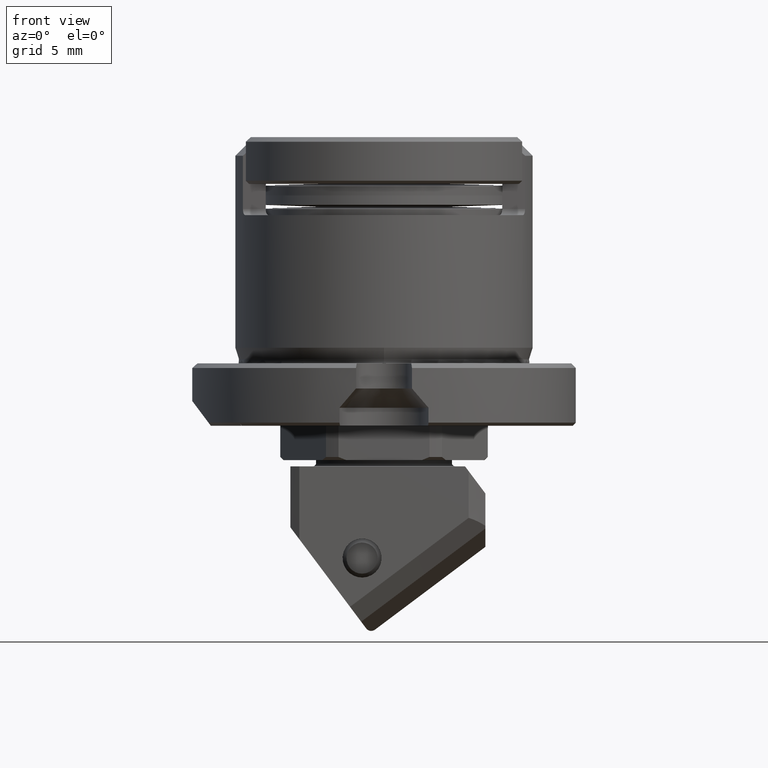
[diagram: clean part render]
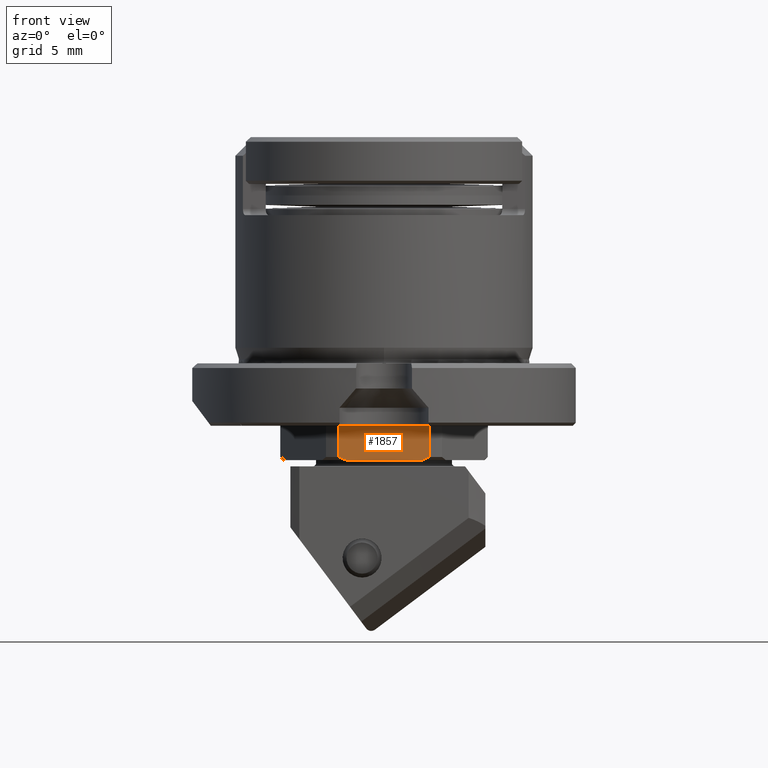
[diagram: same view with one face highlighted and labeled with its STEP entity id]
A machine part, front view. The second image highlights one B-rep face of the part: STEP entity #1857.
In plain terms, the highlighted planar face has unit normal (0, 1, 0).
Its self-contained STEP definition (entity closure, byte-faithful):
#381=B_SPLINE_CURVE_WITH_KNOTS('',3,(#26947,#26948,#26949,#26950),
 .UNSPECIFIED.,.F.,.F.,(4,4),(0.,1.),.UNSPECIFIED.);
#382=B_SPLINE_CURVE_WITH_KNOTS('',3,(#26955,#26956,#26957,#26958),
 .UNSPECIFIED.,.F.,.F.,(4,4),(0.,1.),.UNSPECIFIED.);
#919=FACE_OUTER_BOUND('',#3549,.T.);
#1857=ADVANCED_FACE('',(#919),#2626,.F.);
#2626=PLANE('',#18571);
#3549=EDGE_LOOP('',(#6801,#6802,#6803,#6804,#6805,#6806));
#6801=ORIENTED_EDGE('',*,*,#12563,.T.);
#6802=ORIENTED_EDGE('',*,*,#12564,.F.);
#6803=ORIENTED_EDGE('',*,*,#12079,.F.);
#6804=ORIENTED_EDGE('',*,*,#12565,.F.);
#6805=ORIENTED_EDGE('',*,*,#12566,.T.);
#6806=ORIENTED_EDGE('',*,*,#12560,.T.);
#10199=VERTEX_POINT('',#25832);
#10200=VERTEX_POINT('',#25834);
#10530=VERTEX_POINT('',#26923);
#10538=VERTEX_POINT('',#26940);
#10541=VERTEX_POINT('',#26951);
#10542=VERTEX_POINT('',#26954);
#12079=EDGE_CURVE('',#10199,#10200,#14254,.T.);
#12560=EDGE_CURVE('',#10530,#10538,#14658,.T.);
#12563=EDGE_CURVE('',#10538,#10541,#381,.T.);
#12564=EDGE_CURVE('',#10200,#10541,#14659,.T.);
#12565=EDGE_CURVE('',#10542,#10199,#14660,.T.);
#12566=EDGE_CURVE('',#10542,#10530,#382,.T.);
#14254=LINE('',#25833,#16097);
#14658=LINE('',#26941,#16501);
#14659=LINE('',#26952,#16502);
#14660=LINE('',#26953,#16503);
#16097=VECTOR('',#20808,1.);
#16501=VECTOR('',#21606,1.);
#16502=VECTOR('',#21613,1.);
#16503=VECTOR('',#21614,1.);
#18571=AXIS2_PLACEMENT_3D('',#26959,#21615,#21616);
#20808=DIRECTION('',(1.,-1.217005744865E-14,0.));
#21606=DIRECTION('',(1.,0.,1.352716966932E-14));
#21613=DIRECTION('',(1.415386426202E-7,4.268015177556E-7,-0.999999999999899));
#21614=DIRECTION('',(-1.47849581387501E-6,1.37668117508801E-14,0.999999999998907));
#21615=DIRECTION('',(0.,1.,0.));
#21616=DIRECTION('',(1.,0.,0.));
#25832=CARTESIAN_POINT('',(-2.919225068404,-5.975,-4.));
#25833=CARTESIAN_POINT('',(-2.919225068404,-5.975,-4.));
#25834=CARTESIAN_POINT('',(2.919225068404,-5.975,-4.));
#26923=CARTESIAN_POINT('',(-2.42937749228063,-5.975,-6.20000000000002));
#26940=CARTESIAN_POINT('',(2.42937749228082,-5.975,-6.19999999999997));
#26941=CARTESIAN_POINT('',(-2.429377492281,-5.975,-6.2));
#26947=CARTESIAN_POINT('',(2.429377492281,-5.975,-6.2));
#26948=CARTESIAN_POINT('',(2.59017603544456,-5.975,-6.13943560286109));
#26949=CARTESIAN_POINT('',(2.75345865517822,-5.975,-6.07276915042576));
#26950=CARTESIAN_POINT('',(2.919225351482,-5.975,-6.000000642694));
#26951=CARTESIAN_POINT('',(2.91922535148164,-5.97499957319848,-6.000000321347));
#26952=CARTESIAN_POINT('',(2.919225068404,-5.975,-4.));
#26953=CARTESIAN_POINT('',(-2.919222111422,-5.975,-5.99999328159));
#26954=CARTESIAN_POINT('',(-2.91922358666814,-5.975,-6.00000065045405));
#26955=CARTESIAN_POINT('',(-2.91922358666814,-5.975,-6.00000065045405));
#26956=CARTESIAN_POINT('',(-2.75773131089958,-5.975,-6.07089269655936));
#26957=CARTESIAN_POINT('',(-2.59442579637847,-5.975,-6.13783494029238));
#26958=CARTESIAN_POINT('',(-2.42937749228097,-5.975,-6.19999999999991));
#26959=CARTESIAN_POINT('',(1.050188290108E-6,-5.975,-5.100010201188));